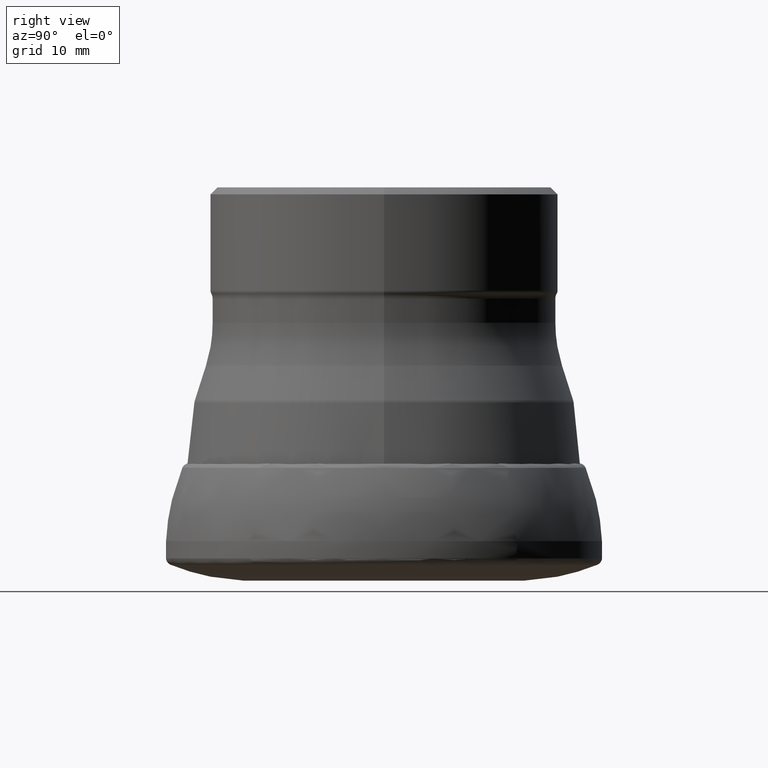
[diagram: clean part render]
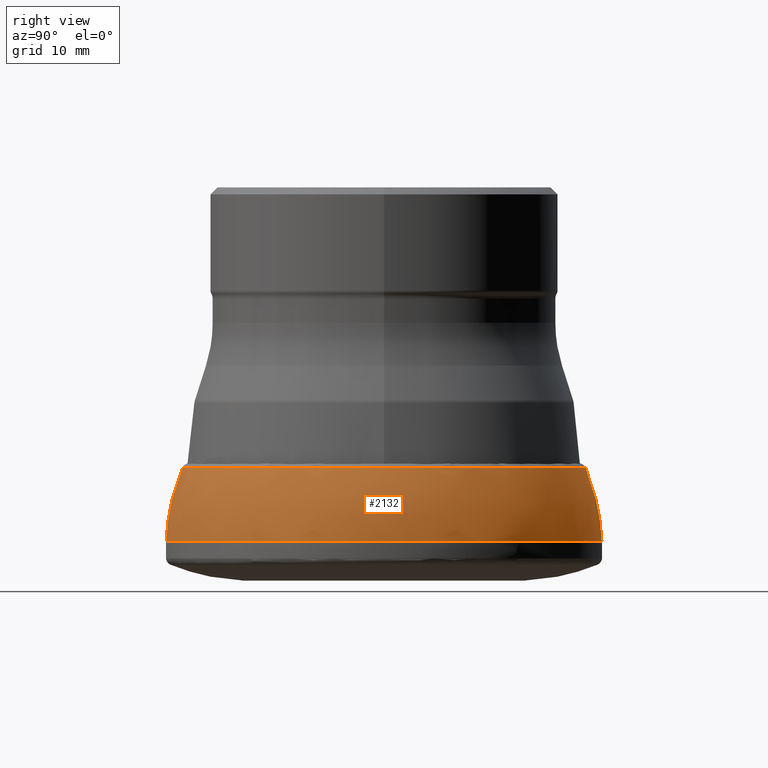
[diagram: same view with one face highlighted and labeled with its STEP entity id]
A machine part, right view. The second image highlights one B-rep face of the part: STEP entity #2132.
In plain terms, the highlighted face is a freeform B-spline surface patch.
Its self-contained STEP definition (entity closure, byte-faithful):
#19 = CARTESIAN_POINT ( 'NONE',  ( 1.637695884795258400E-013, -23.45273718887886000, -11.94174610841723100 ) ) ;
#27 = EDGE_CURVE ( 'NONE', #2843, #1379, #2055, .T. ) ;
#32 = CARTESIAN_POINT ( 'NONE',  ( 49.82353789368509900, 24.91176894684281600, -4.995310742142275600 ) ) ;
#39 = CARTESIAN_POINT ( 'NONE',  ( 1.611329919527518100E-013, -23.07516155966933300, -12.91075774158583100 ) ) ;
#67 = CARTESIAN_POINT ( 'NONE',  ( 1.717524934167246500E-013, -24.59593461175895300, -7.651955085207505100 ) ) ;
#74 = CARTESIAN_POINT ( 'NONE',  ( 1.704946417210949600E-013, -24.41580308969753300, -8.585308474594739900 ) ) ;
#85 = CARTESIAN_POINT ( 'NONE',  ( 48.43882071137626600, -24.21941035568794100, -9.438302989123162200 ) ) ;
#120 = CARTESIAN_POINT ( 'NONE',  ( -1.736501701411937400E-013, 24.86769271960808300, -5.573869614410038600 ) ) ;
#121 = CARTESIAN_POINT ( 'NONE',  ( 1.061515230264569400E-014, -23.90319797733811700, -10.58819071384856300 ) ) ;
#147 = CARTESIAN_POINT ( 'NONE',  ( -1.691232385893373300E-013, 24.21941035568797000, -9.438302989123156900 ) ) ;
#158 = CARTESIAN_POINT ( 'NONE',  ( 47.80639595467639700, 23.90319797733845400, -10.58819071384855800 ) ) ;
#181 = CARTESIAN_POINT ( 'NONE',  ( -1.728284422590970300E-013, 24.75001660990718500, -6.645677643369372900 ) ) ;
#184 = AXIS2_PLACEMENT_3D ( 'NONE', #1157, #1369, #2595 ) ;
#211 = EDGE_CURVE ( 'NONE', #1287, #2843, #937, .T. ) ;
#218 = CARTESIAN_POINT ( 'NONE',  ( -1.617419184204699800E-013, 23.16236329564080500, -12.69905605738181700 ) ) ;
#227 = CARTESIAN_POINT ( 'NONE',  ( 1.616408482464067300E-013, -23.14788947145923000, -12.73419449725518300 ) ) ;
#239 = CARTESIAN_POINT ( 'NONE',  ( -1.740786323446743500E-013, 24.92905094580192600, -4.683872169119760900 ) ) ;
#252 = CARTESIAN_POINT ( 'NONE',  ( 1.068884509196735200E-014, -24.06913938660258300, -10.01156377887557300 ) ) ;
#266 = CARTESIAN_POINT ( 'NONE',  ( 1.741282200027210600E-013, -24.93615218066963000, -4.530690978039413800 ) ) ;
#308 = CARTESIAN_POINT ( 'NONE',  ( -1.669151393530979400E-013, 23.90319797733812000, -10.58819071384855800 ) ) ;
#334 = CARTESIAN_POINT ( 'NONE',  ( -1.642597091873621100E-013, 23.52292526383484600, -11.74859640136338800 ) ) ;
#337 = CARTESIAN_POINT ( 'NONE',  ( 49.50003321981471100, -24.75001660990716300, -6.645677643369380000 ) ) ;
#354 = CARTESIAN_POINT ( 'NONE',  ( -1.629070351688218600E-013, 23.32921464543749600, -12.27758507255573600 ) ) ;
#362 = CARTESIAN_POINT ( 'NONE',  ( 49.50003321981453300, 24.75001660990753300, -6.645677643369372900 ) ) ;
#364 = CARTESIAN_POINT ( 'NONE',  ( 46.32472659128191600, -23.16236329564078400, -12.69905605738182100 ) ) ;
#366 = CARTESIAN_POINT ( 'NONE',  ( -1.700659019349354500E-013, 24.35440511208418400, -8.869109861484815800 ) ) ;
#387 = CARTESIAN_POINT ( 'NONE',  ( -1.740786323446743500E-013, 24.92905094580192600, -4.683872169119760900 ) ) ;
#388 = CARTESIAN_POINT ( 'NONE',  ( 1.028615561422120500E-014, -23.16236329564080200, -12.69905605738182300 ) ) ;
#397 = CARTESIAN_POINT ( 'NONE',  ( 49.85810189160401500, 24.92905094580227400, -4.683872169119761800 ) ) ;
#417 = CARTESIAN_POINT ( 'NONE',  ( 1.106304778757061400E-014, -24.91176894684246800, -4.995310742142280900 ) ) ;
#448 = CARTESIAN_POINT ( 'NONE',  ( 1.107387611861449700E-014, -24.93615218066963000, -4.530690978039404000 ) ) ;
#465 = CARTESIAN_POINT ( 'NONE',  ( 46.15032311934746200, -23.07516155967355700, -12.91075774158755600 ) ) ;
#480 = CARTESIAN_POINT ( 'NONE',  ( -1.741282200027210600E-013, 24.93615218066963000, -4.530690978039397800 ) ) ;
#533 = CARTESIAN_POINT ( 'NONE',  ( 1.024743026419797200E-014, -23.07516155967357500, -12.91075774158755800 ) ) ;
#557 = CARTESIAN_POINT ( 'NONE',  ( 1.737508360184892000E-013, -24.88210864619138400, -5.397273047007519000 ) ) ;
#571 = CARTESIAN_POINT ( 'NONE',  ( -1.739579527909446700E-013, 24.91176894684246800, -4.995310742142274700 ) ) ;
#572 = CARTESIAN_POINT ( 'NONE',  ( 1.044627729377848800E-014, -23.52292526383484300, -11.74859640136339300 ) ) ;
#587 = EDGE_LOOP ( 'NONE', ( #2384, #2703, #2547, #2461 ) ) ;
#625 = CARTESIAN_POINT ( 'NONE',  ( 49.34373194157843300, 24.67186597078947600, -7.192351833296964300 ) ) ;
#747 = CARTESIAN_POINT ( 'NONE',  ( 46.65842929087514800, 23.32921464543782300, -12.27758507255573800 ) ) ;
#784 = CARTESIAN_POINT ( 'NONE',  ( 49.85810189160419300, -24.92905094580190100, -4.683872169119767100 ) ) ;
#800 = CARTESIAN_POINT ( 'NONE',  ( 1.104347401064491600E-014, -24.86769271960808300, -5.573869614410044800 ) ) ;
#805 = CARTESIAN_POINT ( 'NONE',  ( -1.732837028914779000E-013, 24.81521252364672100, -6.106026376663790800 ) ) ;
#830 = FACE_OUTER_BOUND ( 'NONE', #587, .T. ) ;
#842 = VERTEX_POINT ( 'NONE', #2280 ) ;
#863 = CARTESIAN_POINT ( 'NONE',  ( 1.095650946449437400E-014, -24.67186597078913500, -7.192351833296971400 ) ) ;
#864 = CARTESIAN_POINT ( 'NONE',  ( 1.689523731086051700E-013, -24.19494144634119300, -9.532657396468399800 ) ) ;
#870 = CARTESIAN_POINT ( 'NONE',  ( 1.680704034991583300E-013, -24.06863837840913700, -10.01064354502307700 ) ) ;
#914 = CARTESIAN_POINT ( 'NONE',  ( 49.34373194157860400, -24.67186597078911300, -7.192351833296971400 ) ) ;
#937 = CIRCLE ( 'NONE', #953, 23.07516155966933600 ) ;
#953 = AXIS2_PLACEMENT_3D ( 'NONE', #2179, #2263, #1402 ) ;
#997 = CARTESIAN_POINT ( 'NONE',  ( 1.741282200027210600E-013, -24.93615218066963000, -4.530690978039413800 ) ) ;
#1002 = B_SPLINE_CURVE_WITH_KNOTS ( 'NONE', 3,
 ( #2245, #1503, #2513, #334, #1102, #2027, #1545, #147, #366, #2462, #2001, #1272, #1732, #805, #120, #571, #387, #1294 ),
 .UNSPECIFIED., .F., .F.,
 ( 4, 1, 1, 1, 1, 1, 1, 1, 1, 1, 1, 1, 1, 1, 1, 4 ),
 ( 0.0000000000000000000, 0.07267986867399556200, 0.1446294744445777400, 0.2158145697562261500, 0.2862023623196668900, 0.3557615538478332600, 0.4244623703952659100, 0.4922765844683259000, 0.5591775291410866500, 0.6251401044720856800, 0.6901407765700804400, 0.7541575697021007900, 0.8171700518745362900, 0.8791593143475747700, 0.9401079455654619600, 1.000000000000000000 ),
 .UNSPECIFIED. ) ;
#1007 = CARTESIAN_POINT ( 'NONE',  ( -1.709046610548368100E-013, 24.47452019197449500, -8.304641566072353600 ) ) ;
#1033 = CARTESIAN_POINT ( 'NONE',  ( 48.70881022416852300, 24.35440511208452500, -8.869109861484815800 ) ) ;
#1039 = CARTESIAN_POINT ( 'NONE',  ( -1.611329919527814200E-013, 23.07516155967357800, -12.91075774158755300 ) ) ;
#1051 = CARTESIAN_POINT ( 'NONE',  ( 1.626198904318173900E-013, -23.28809388477210300, -12.38239787145869100 ) ) ;
#1068 = CARTESIAN_POINT ( 'NONE',  ( 49.82353789368527700, -24.91176894684244300, -4.995310742142280900 ) ) ;
#1080 = CARTESIAN_POINT ( 'NONE',  ( 47.44267965152700100, -23.72133982576331200, -11.16749861297150300 ) ) ;
#1102 = CARTESIAN_POINT ( 'NONE',  ( -1.656452306680181900E-013, 23.72133982576333700, -11.16749861297149800 ) ) ;
#1114 = CARTESIAN_POINT ( 'NONE',  ( 48.13827877320532200, 24.06913938660292400, -10.01156377887556700 ) ) ;
#1157 = CARTESIAN_POINT ( 'NONE',  ( 0.0000000000000000000, 5.658837121440914600E-016, -4.530690978039401400 ) ) ;
#1202 = CARTESIAN_POINT ( 'NONE',  ( 48.70881022416870800, -24.35440511208415500, -8.869109861484822900 ) ) ;
#1272 = CARTESIAN_POINT ( 'NONE',  ( -1.722827192628983800E-013, 24.67186597078913800, -7.192351833296965100 ) ) ;
#1287 = VERTEX_POINT ( 'NONE', #2789 ) ;
#1294 = CARTESIAN_POINT ( 'NONE',  ( -1.741282200027210600E-013, 24.93615218066963000, -4.530690978039397800 ) ) ;
#1369 = DIRECTION ( 'NONE',  ( -0.0000000000000000000, 1.249000902703301100E-016, -1.000000000000000000 ) ) ;
#1379 = VERTEX_POINT ( 'NONE', #997 ) ;
#1393 = CARTESIAN_POINT ( 'NONE',  ( -1.642597091873621100E-013, 23.52292526383484600, -11.74859640136338800 ) ) ;
#1401 = CARTESIAN_POINT ( 'NONE',  ( 49.63042504729359900, 24.81521252364706600, -6.106026376663790800 ) ) ;
#1402 = DIRECTION ( 'NONE',  ( 0.0000000000000000000, 1.000000000000000000, 1.503541781487458000E-016 ) ) ;
#1479 = CARTESIAN_POINT ( 'NONE',  ( 1.671125523862610900E-013, -23.93146864729228400, -10.49097506306471300 ) ) ;
#1503 = CARTESIAN_POINT ( 'NONE',  ( -1.617419184204699800E-013, 23.16236329564080500, -12.69905605738181700 ) ) ;
#1535 = CARTESIAN_POINT ( 'NONE',  ( 1.081552852259378100E-014, -24.35440511208418000, -8.869109861484822900 ) ) ;
#1545 = CARTESIAN_POINT ( 'NONE',  ( -1.680739020206743700E-013, 24.06913938660258600, -10.01156377887556700 ) ) ;
#1601 = CARTESIAN_POINT ( 'NONE',  ( -1.691232385893373300E-013, 24.21941035568797000, -9.438302989123156900 ) ) ;
#1669 = CARTESIAN_POINT ( 'NONE',  ( -1.732837028914779000E-013, 24.81521252364672100, -6.106026376663790800 ) ) ;
#1691 = CARTESIAN_POINT ( 'NONE',  ( 1.099121532006960600E-014, -24.75001660990718500, -6.645677643369378300 ) ) ;
#1692 = CARTESIAN_POINT ( 'NONE',  ( 1.731382138776598300E-013, -24.79437766879593100, -6.284141263681696900 ) ) ;
#1702 = CIRCLE ( 'NONE', #184, 24.93615218066963000 ) ;
#1719 = CARTESIAN_POINT ( 'NONE',  ( -1.656452306680181900E-013, 23.72133982576333700, -11.16749861297149800 ) ) ;
#1721 = CARTESIAN_POINT ( 'NONE',  ( 1.075557880789188000E-014, -24.21941035568796600, -9.438302989123162200 ) ) ;
#1728 = EDGE_CURVE ( 'NONE', #842, #1379, #1702, .T. ) ;
#1732 = CARTESIAN_POINT ( 'NONE',  ( -1.728284422590970300E-013, 24.75001660990718500, -6.645677643369372900 ) ) ;
#1734 = CARTESIAN_POINT ( 'NONE',  ( 1.727405420058815100E-013, -24.73742879334954700, -6.735362749791277400 ) ) ;
#1802 = CARTESIAN_POINT ( 'NONE',  ( 1.711582372292713400E-013, -24.51083374341947200, -8.116703194540395600 ) ) ;
#1828 = CARTESIAN_POINT ( 'NONE',  ( -1.716425254945201000E-013, 24.58018657940072400, -7.745524957410780500 ) ) ;
#1841 = CARTESIAN_POINT ( 'NONE',  ( -1.739579527909446700E-013, 24.91176894684246800, -4.995310742142274700 ) ) ;
#1944 = CARTESIAN_POINT ( 'NONE',  ( 1.740869580999672000E-013, -24.93024324134711700, -4.658153085730066100 ) ) ;
#1953 = CARTESIAN_POINT ( 'NONE',  ( 1.697599178910833000E-013, -24.31058645545152400, -9.057416699671613000 ) ) ;
#1958 = CARTESIAN_POINT ( 'NONE',  ( 46.32472659128176000, 23.16236329564112500, -12.69905605738181500 ) ) ;
#1965 = CARTESIAN_POINT ( 'NONE',  ( 48.43882071137609600, 24.21941035568831100, -9.438302989123158700 ) ) ;
#1968 = CARTESIAN_POINT ( 'NONE',  ( 1.036025249831484500E-014, -23.32921464543749200, -12.27758507255574100 ) ) ;
#2001 = CARTESIAN_POINT ( 'NONE',  ( -1.716425254945201000E-013, 24.58018657940072400, -7.745524957410780500 ) ) ;
#2027 = CARTESIAN_POINT ( 'NONE',  ( -1.669151393530979400E-013, 23.90319797733812000, -10.58819071384855800 ) ) ;
#2055 = B_SPLINE_CURVE_WITH_KNOTS ( 'NONE', 3,
 ( #39, #227, #1051, #19, #2170, #2541, #1479, #870, #864, #1953, #74, #1802, #67, #2398, #1734, #1692, #2274, #557, #2406, #1944, #266 ),
 .UNSPECIFIED., .F., .F.,
 ( 4, 1, 1, 1, 1, 1, 1, 1, 1, 1, 1, 1, 1, 1, 1, 1, 1, 1, 4 ),
 ( 0.0000000000000000000, 0.06061639735590911700, 0.1207296942584851500, 0.1803198638361583100, 0.2393675741311836200, 0.2978542050836363000, 0.3557618626823480500, 0.4130733903178768800, 0.4697723773893080500, 0.5258431652320347800, 0.5812708504478463200, 0.6360412857311701400, 0.6901410782964418900, 0.7435575860212226800, 0.7962789114277276600, 0.8482938936320358900, 0.8995920983953873400, 0.9501638064157255100, 1.000000000000000000 ),
 .UNSPECIFIED. ) ;
#2078 = CARTESIAN_POINT ( 'NONE',  ( 47.80639595467656700, -23.90319797733809500, -10.58819071384856300 ) ) ;
#2105 = CARTESIAN_POINT ( 'NONE',  ( 49.63042504729379100, -24.81521252364670400, -6.106026376663797900 ) ) ;
#2132 = ADVANCED_FACE ( 'NONE', ( #830 ), #2738, .F. ) ;
#2170 = CARTESIAN_POINT ( 'NONE',  ( 1.649639383160570800E-013, -23.62377488328724300, -11.45699947641913500 ) ) ;
#2179 = CARTESIAN_POINT ( 'NONE',  ( 0.0000000000000000000, 1.612554807382432200E-015, -12.91075774158582100 ) ) ;
#2204 = CARTESIAN_POINT ( 'NONE',  ( 1.611329919527518100E-013, -23.07516155966933300, -12.91075774158583100 ) ) ;
#2233 = CARTESIAN_POINT ( 'NONE',  ( 49.87230436133960900, -24.93615218066960900, -4.530690978039404000 ) ) ;
#2245 = CARTESIAN_POINT ( 'NONE',  ( -1.611329919527517800E-013, 23.07516155966933600, -12.91075774158581700 ) ) ;
#2263 = DIRECTION ( 'NONE',  ( -0.0000000000000000000, 1.249000902703301100E-016, -1.000000000000000000 ) ) ;
#2274 = CARTESIAN_POINT ( 'NONE',  ( 1.734747140435488200E-013, -24.84256640779124200, -5.838024925649479600 ) ) ;
#2280 = CARTESIAN_POINT ( 'NONE',  ( -1.741282200027210600E-013, 24.93615218066963000, -4.530690978039397800 ) ) ;
#2316 = CARTESIAN_POINT ( 'NONE',  ( 49.16037315880159800, 24.58018657940107200, -7.745524957410781400 ) ) ;
#2355 = CARTESIAN_POINT ( 'NONE',  ( 48.94904038394914600, 24.47452019197484000, -8.304641566072353600 ) ) ;
#2375 = CARTESIAN_POINT ( 'NONE',  ( -1.680739020206743700E-013, 24.06913938660258600, -10.01156377887556700 ) ) ;
#2384 = ORIENTED_EDGE ( 'NONE', *, *, #1728, .T. ) ;
#2398 = CARTESIAN_POINT ( 'NONE',  ( 1.722792717077976200E-013, -24.67137226127643900, -7.191401456064433300 ) ) ;
#2405 = CARTESIAN_POINT ( 'NONE',  ( 49.73538543921631600, 24.86769271960842800, -5.573869614410038600 ) ) ;
#2406 = CARTESIAN_POINT ( 'NONE',  ( 1.739895620946199000E-013, -24.91629557903774700, -4.916599764276687900 ) ) ;
#2409 = CARTESIAN_POINT ( 'NONE',  ( -1.736501701411937400E-013, 24.86769271960808300, -5.573869614410038600 ) ) ;
#2436 = CARTESIAN_POINT ( 'NONE',  ( 1.091579563601315100E-014, -24.58018657940072100, -7.745524957410785800 ) ) ;
#2448 = CARTESIAN_POINT ( 'NONE',  ( 46.15032311934730600, 23.07516155967390100, -12.91075774158755100 ) ) ;
#2461 = ORIENTED_EDGE ( 'NONE', *, *, #2716, .T. ) ;
#2462 = CARTESIAN_POINT ( 'NONE',  ( -1.709046610548368100E-013, 24.47452019197449500, -8.304641566072353600 ) ) ;
#2485 = CARTESIAN_POINT ( 'NONE',  ( 49.73538543921650800, -24.86769271960806200, -5.573869614410045700 ) ) ;
#2499 = CARTESIAN_POINT ( 'NONE',  ( 48.94904038394932400, -24.47452019197447000, -8.304641566072360700 ) ) ;
#2513 = CARTESIAN_POINT ( 'NONE',  ( -1.629070351688218600E-013, 23.32921464543749600, -12.27758507255573600 ) ) ;
#2514 = CARTESIAN_POINT ( 'NONE',  ( 1.053439105980802900E-014, -23.72133982576333400, -11.16749861297150300 ) ) ;
#2541 = CARTESIAN_POINT ( 'NONE',  ( 1.660773324876438100E-013, -23.78321926570454200, -10.97322852328703400 ) ) ;
#2547 = ORIENTED_EDGE ( 'NONE', *, *, #211, .F. ) ;
#2553 = CARTESIAN_POINT ( 'NONE',  ( 49.16037315880178900, -24.58018657940069900, -7.745524957410786700 ) ) ;
#2560 = CARTESIAN_POINT ( 'NONE',  ( 47.04585052766984200, 23.52292526383517700, -11.74859640136338800 ) ) ;
#2595 = DIRECTION ( 'NONE',  ( 0.0000000000000000000, 1.000000000000000000, 1.391332121658734000E-016 ) ) ;
#2598 = CARTESIAN_POINT ( 'NONE',  ( 46.65842929087530400, -23.32921464543747100, -12.27758507255574300 ) ) ;
#2639 = CARTESIAN_POINT ( 'NONE',  ( 49.87230436133943100, 24.93615218066997500, -4.530690978039397800 ) ) ;
#2703 = ORIENTED_EDGE ( 'NONE', *, *, #27, .F. ) ;
#2709 = CARTESIAN_POINT ( 'NONE',  ( -1.700659019349354500E-013, 24.35440511208418400, -8.869109861484815800 ) ) ;
#2716 = EDGE_CURVE ( 'NONE', #1287, #842, #1002, .T. ) ;
#2717 = CARTESIAN_POINT ( 'NONE',  ( 1.102016812188765100E-014, -24.81521252364672100, -6.106026376663797000 ) ) ;
#2727 = CARTESIAN_POINT ( 'NONE',  ( 1.107072253683312100E-014, -24.92905094580192600, -4.683872169119767100 ) ) ;
#2738 =( BOUNDED_SURFACE ( )  B_SPLINE_SURFACE ( 3, 3, ( 
 ( #480, #2639, #2233, #448 ),
 ( #239, #397, #784, #2727 ),
 ( #1841, #32, #1068, #417 ),
 ( #2409, #2405, #2485, #800 ),
 ( #1669, #1401, #2105, #2717 ),
 ( #181, #362, #337, #1691 ),
 ( #2890, #625, #914, #863 ),
 ( #1828, #2316, #2553, #2436 ),
 ( #1007, #2355, #2499, #2935 ),
 ( #2709, #1033, #1202, #1535 ),
 ( #1601, #1965, #85, #1721 ),
 ( #2375, #1114, #2992, #252 ),
 ( #308, #158, #2078, #121 ),
 ( #1719, #2925, #1080, #2514 ),
 ( #1393, #2560, #2752, #572 ),
 ( #354, #747, #2598, #1968 ),
 ( #218, #1958, #364, #388 ),
 ( #1039, #2448, #465, #533 ) ),
 .UNSPECIFIED., .F., .F., .T. ) 
 B_SPLINE_SURFACE_WITH_KNOTS ( ( 4, 1, 1, 1, 1, 1, 1, 1, 1, 1, 1, 1, 1, 1, 1, 4 ),
 ( 4, 4 ),
 ( 0.0000000000000000000, 0.05989205443453803100, 0.1208406856524252600, 0.1828299481254637100, 0.2458424302978991800, 0.3098592234299195100, 0.3748598955279142700, 0.4408224708589133500, 0.5077234155316741000, 0.5755376296047340900, 0.6442384461521667400, 0.7137976376803331100, 0.7841854302437738500, 0.8553705255554222600, 0.9273201313260044400, 1.000000000000000000 ),
 ( 0.0000000000000000000, 1.000000000000000000 ),
 .UNSPECIFIED. ) 
 GEOMETRIC_REPRESENTATION_ITEM ( )  RATIONAL_B_SPLINE_SURFACE ( (
 ( 1.000000000000000000, 0.3333333333333311500, 0.3333333333333311500, 1.000000000000000000),
 ( 1.000000000000000000, 0.3333333333333311500, 0.3333333333333311500, 1.000000000000000000),
 ( 1.000000000000000000, 0.3333333333333311500, 0.3333333333333311500, 1.000000000000000000),
 ( 1.000000000000000000, 0.3333333333333311500, 0.3333333333333311500, 1.000000000000000000),
 ( 1.000000000000000000, 0.3333333333333311500, 0.3333333333333311500, 1.000000000000000000),
 ( 1.000000000000000000, 0.3333333333333311500, 0.3333333333333311500, 1.000000000000000000),
 ( 1.000000000000000000, 0.3333333333333311500, 0.3333333333333311500, 1.000000000000000000),
 ( 1.000000000000000000, 0.3333333333333311500, 0.3333333333333311500, 1.000000000000000000),
 ( 1.000000000000000000, 0.3333333333333311500, 0.3333333333333311500, 1.000000000000000000),
 ( 1.000000000000000000, 0.3333333333333311500, 0.3333333333333311500, 1.000000000000000000),
 ( 1.000000000000000000, 0.3333333333333311500, 0.3333333333333311500, 1.000000000000000000),
 ( 1.000000000000000000, 0.3333333333333311500, 0.3333333333333311500, 1.000000000000000000),
 ( 1.000000000000000000, 0.3333333333333311500, 0.3333333333333311500, 1.000000000000000000),
 ( 1.000000000000000000, 0.3333333333333311500, 0.3333333333333311500, 1.000000000000000000),
 ( 1.000000000000000000, 0.3333333333333311500, 0.3333333333333311500, 1.000000000000000000),
 ( 1.000000000000000000, 0.3333333333333311500, 0.3333333333333311500, 1.000000000000000000),
 ( 1.000000000000000000, 0.3333333333333311500, 0.3333333333333311500, 1.000000000000000000),
 ( 1.000000000000000000, 0.3333333333333311500, 0.3333333333333311500, 1.000000000000000000) ) ) 
 REPRESENTATION_ITEM ( '' )  SURFACE ( )  );
#2752 = CARTESIAN_POINT ( 'NONE',  ( 47.04585052767001200, -23.52292526383482100, -11.74859640136339300 ) ) ;
#2789 = CARTESIAN_POINT ( 'NONE',  ( -1.611329919527517800E-013, 23.07516155966933600, -12.91075774158581700 ) ) ;
#2843 = VERTEX_POINT ( 'NONE', #2204 ) ;
#2890 = CARTESIAN_POINT ( 'NONE',  ( -1.722827192628983800E-013, 24.67186597078913800, -7.192351833296965100 ) ) ;
#2925 = CARTESIAN_POINT ( 'NONE',  ( 47.44267965152681700, 23.72133982576366400, -11.16749861297149800 ) ) ;
#2935 = CARTESIAN_POINT ( 'NONE',  ( 1.086887033351333600E-014, -24.47452019197449100, -8.304641566072360700 ) ) ;
#2992 = CARTESIAN_POINT ( 'NONE',  ( 48.13827877320549200, -24.06913938660256100, -10.01156377887557300 ) ) ;